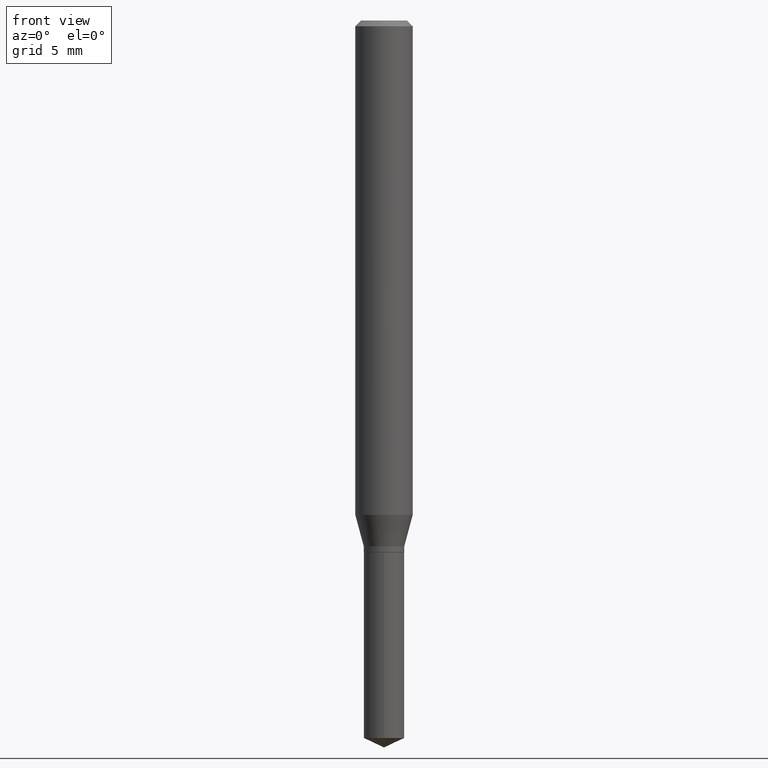
[diagram: clean part render]
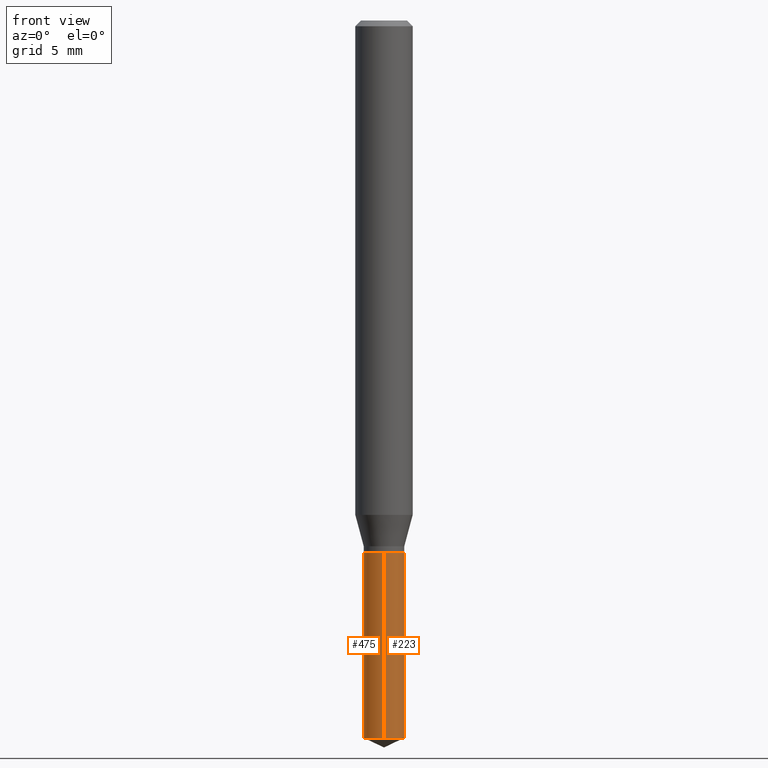
[diagram: same view with one multi-face feature highlighted, each face labeled with its STEP entity id]
A machine part, front view. The highlighted faces form ONE feature: a constant-radius fillet chain: 2 tangent blend faces with common blend radius 1.0604 mm. The faces share edges in the B-rep.
Their STEP definitions:
[1] entity #475 (Cylinder):
#12 = CARTESIAN_POINT ( 'NONE',  ( -2.915386917933655073E-16, -0.04175000000000516492, -1.476631655272028665 ) ) ;
#16 = CARTESIAN_POINT ( 'NONE',  ( 2.676565608369631794E-29, -3.821426325363822773E-15, -1.094499999999999806 ) ) ;
#18 = EDGE_CURVE ( 'NONE', #35, #111, #105, .T. ) ;
#20 = CARTESIAN_POINT ( 'NONE',  ( 2.676565608369631794E-29, -3.821426325363822773E-15, -1.094499999999999806 ) ) ;
#35 = VERTEX_POINT ( 'NONE', #461 ) ;
#73 = AXIS2_PLACEMENT_3D ( 'NONE', #20, #399, #440 ) ;
#90 = DIRECTION ( 'NONE',  ( -2.445458899330790108E-29, 3.491495526022433205E-15, 1.000000000000000000 ) ) ;
#99 = EDGE_CURVE ( 'NONE', #35, #433, #154, .T. ) ;
#104 = AXIS2_PLACEMENT_3D ( 'NONE', #16, #90, #231 ) ;
#105 = LINE ( 'NONE', #126, #427 ) ;
#111 = VERTEX_POINT ( 'NONE', #119 ) ;
#118 = ORIENTED_EDGE ( 'NONE', *, *, #424, .F. ) ;
#119 = CARTESIAN_POINT ( 'NONE',  ( 2.966515921798779349E-16, 0.04174999999999617906, -1.094500000000000028 ) ) ;
#123 = CARTESIAN_POINT ( 'NONE',  ( -2.915386917933749243E-16, -0.04175000000000383266, -1.094499999999999806 ) ) ;
#126 = CARTESIAN_POINT ( 'NONE',  ( 2.966515921798685672E-16, 0.04174999999999617906, -1.094500000000000028 ) ) ;
#141 = DIRECTION ( 'NONE',  ( -2.445458899330790108E-29, 3.491495526022433599E-15, 1.000000000000000000 ) ) ;
#148 = CYLINDRICAL_SURFACE ( 'NONE', #73, 0.04175000000000000239 ) ;
#154 = CIRCLE ( 'NONE', #326, 0.04175000000000000239 ) ;
#173 = CARTESIAN_POINT ( 'NONE',  ( -2.915386917933749243E-16, -0.04175000000000383266, -1.094499999999999806 ) ) ;
#188 = CARTESIAN_POINT ( 'NONE',  ( 3.611052865470621023E-29, -5.155637290097658603E-15, -1.476631655272029109 ) ) ;
#197 = ORIENTED_EDGE ( 'NONE', *, *, #99, .T. ) ;
#221 = CIRCLE ( 'NONE', #104, 0.04175000000000000239 ) ;
#225 = EDGE_LOOP ( 'NONE', ( #239, #197, #345, #118 ) ) ;
#231 = DIRECTION ( 'NONE',  ( -6.982962677686266711E-15, -1.000000000000000000, 3.271674243909297046E-15 ) ) ;
#239 = ORIENTED_EDGE ( 'NONE', *, *, #18, .F. ) ;
#262 = VECTOR ( 'NONE', #141, 39.37007874015748143 ) ;
#283 = EDGE_CURVE ( 'NONE', #433, #313, #356, .T. ) ;
#300 = DIRECTION ( 'NONE',  ( -2.445458899330790108E-29, 3.491495526022433599E-15, 1.000000000000000000 ) ) ;
#313 = VERTEX_POINT ( 'NONE', #123 ) ;
#326 = AXIS2_PLACEMENT_3D ( 'NONE', #188, #337, #341 ) ;
#337 = DIRECTION ( 'NONE',  ( -2.445458899330790108E-29, 3.491495526022433205E-15, 1.000000000000000000 ) ) ;
#341 = DIRECTION ( 'NONE',  ( -6.982962677686266711E-15, -1.000000000000000000, 6.543348487818594091E-15 ) ) ;
#345 = ORIENTED_EDGE ( 'NONE', *, *, #283, .T. ) ;
#356 = LINE ( 'NONE', #173, #262 ) ;
#399 = DIRECTION ( 'NONE',  ( -2.445458899330790108E-29, 3.491495526022433205E-15, 1.000000000000000000 ) ) ;
#415 = FACE_OUTER_BOUND ( 'NONE', #225, .T. ) ;
#424 = EDGE_CURVE ( 'NONE', #111, #313, #221, .T. ) ;
#427 = VECTOR ( 'NONE', #300, 39.37007874015748143 ) ;
#433 = VERTEX_POINT ( 'NONE', #12 ) ;
#440 = DIRECTION ( 'NONE',  ( -6.982962677686266711E-15, -1.000000000000000000, 3.271674243909297046E-15 ) ) ;
#461 = CARTESIAN_POINT ( 'NONE',  ( 2.966515921798778856E-16, 0.04174999999999483985, -1.476631655272029331 ) ) ;
#475 = ADVANCED_FACE ( 'NONE', ( #415 ), #148, .T. ) ;
[2] entity #223 (Cylinder):
#12 = CARTESIAN_POINT ( 'NONE',  ( -2.915386917933655073E-16, -0.04175000000000516492, -1.476631655272028665 ) ) ;
#17 = DIRECTION ( 'NONE',  ( -6.982962677686266711E-15, -1.000000000000000000, 3.271674243909297046E-15 ) ) ;
#18 = EDGE_CURVE ( 'NONE', #35, #111, #105, .T. ) ;
#35 = VERTEX_POINT ( 'NONE', #461 ) ;
#72 = CIRCLE ( 'NONE', #139, 0.04175000000000000239 ) ;
#81 = DIRECTION ( 'NONE',  ( -6.982962677686266711E-15, -1.000000000000000000, 6.543348487818594091E-15 ) ) ;
#105 = LINE ( 'NONE', #126, #427 ) ;
#111 = VERTEX_POINT ( 'NONE', #119 ) ;
#114 = AXIS2_PLACEMENT_3D ( 'NONE', #324, #207, #17 ) ;
#115 = EDGE_CURVE ( 'NONE', #433, #35, #72, .T. ) ;
#119 = CARTESIAN_POINT ( 'NONE',  ( 2.966515921798779349E-16, 0.04174999999999617906, -1.094500000000000028 ) ) ;
#123 = CARTESIAN_POINT ( 'NONE',  ( -2.915386917933749243E-16, -0.04175000000000383266, -1.094499999999999806 ) ) ;
#126 = CARTESIAN_POINT ( 'NONE',  ( 2.966515921798685672E-16, 0.04174999999999617906, -1.094500000000000028 ) ) ;
#139 = AXIS2_PLACEMENT_3D ( 'NONE', #352, #202, #81 ) ;
#141 = DIRECTION ( 'NONE',  ( -2.445458899330790108E-29, 3.491495526022433599E-15, 1.000000000000000000 ) ) ;
#142 = ORIENTED_EDGE ( 'NONE', *, *, #263, .F. ) ;
#170 = FACE_OUTER_BOUND ( 'NONE', #366, .T. ) ;
#173 = CARTESIAN_POINT ( 'NONE',  ( -2.915386917933749243E-16, -0.04175000000000383266, -1.094499999999999806 ) ) ;
#198 = ORIENTED_EDGE ( 'NONE', *, *, #283, .F. ) ;
#202 = DIRECTION ( 'NONE',  ( -2.445458899330790108E-29, 3.491495526022433205E-15, 1.000000000000000000 ) ) ;
#204 = DIRECTION ( 'NONE',  ( -2.445458899330790108E-29, 3.491495526022433205E-15, 1.000000000000000000 ) ) ;
#207 = DIRECTION ( 'NONE',  ( -2.445458899330790108E-29, 3.491495526022433205E-15, 1.000000000000000000 ) ) ;
#223 = ADVANCED_FACE ( 'NONE', ( #170 ), #249, .T. ) ;
#249 = CYLINDRICAL_SURFACE ( 'NONE', #328, 0.04175000000000000239 ) ;
#262 = VECTOR ( 'NONE', #141, 39.37007874015748143 ) ;
#263 = EDGE_CURVE ( 'NONE', #313, #111, #467, .T. ) ;
#283 = EDGE_CURVE ( 'NONE', #433, #313, #356, .T. ) ;
#300 = DIRECTION ( 'NONE',  ( -2.445458899330790108E-29, 3.491495526022433599E-15, 1.000000000000000000 ) ) ;
#313 = VERTEX_POINT ( 'NONE', #123 ) ;
#315 = DIRECTION ( 'NONE',  ( -6.982962677686266711E-15, -1.000000000000000000, 3.271674243909297046E-15 ) ) ;
#324 = CARTESIAN_POINT ( 'NONE',  ( 2.676565608369631794E-29, -3.821426325363822773E-15, -1.094499999999999806 ) ) ;
#328 = AXIS2_PLACEMENT_3D ( 'NONE', #473, #204, #315 ) ;
#352 = CARTESIAN_POINT ( 'NONE',  ( 3.611052865470621023E-29, -5.155637290097658603E-15, -1.476631655272029109 ) ) ;
#356 = LINE ( 'NONE', #173, #262 ) ;
#366 = EDGE_LOOP ( 'NONE', ( #460, #400, #142, #198 ) ) ;
#400 = ORIENTED_EDGE ( 'NONE', *, *, #18, .T. ) ;
#427 = VECTOR ( 'NONE', #300, 39.37007874015748143 ) ;
#433 = VERTEX_POINT ( 'NONE', #12 ) ;
#460 = ORIENTED_EDGE ( 'NONE', *, *, #115, .T. ) ;
#461 = CARTESIAN_POINT ( 'NONE',  ( 2.966515921798778856E-16, 0.04174999999999483985, -1.476631655272029331 ) ) ;
#467 = CIRCLE ( 'NONE', #114, 0.04175000000000000239 ) ;
#473 = CARTESIAN_POINT ( 'NONE',  ( 2.676565608369631794E-29, -3.821426325363822773E-15, -1.094499999999999806 ) ) ;